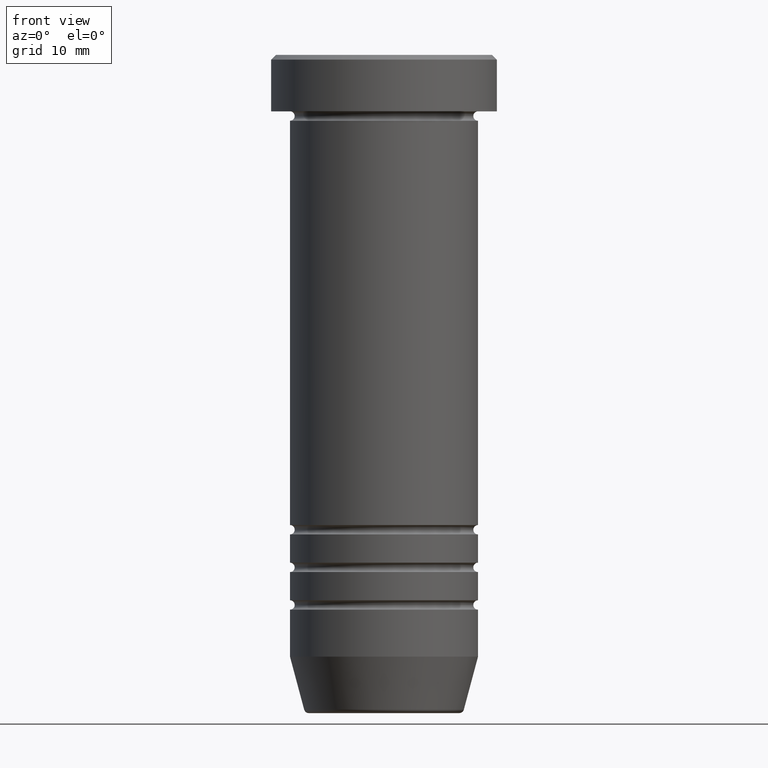
[diagram: clean part render]
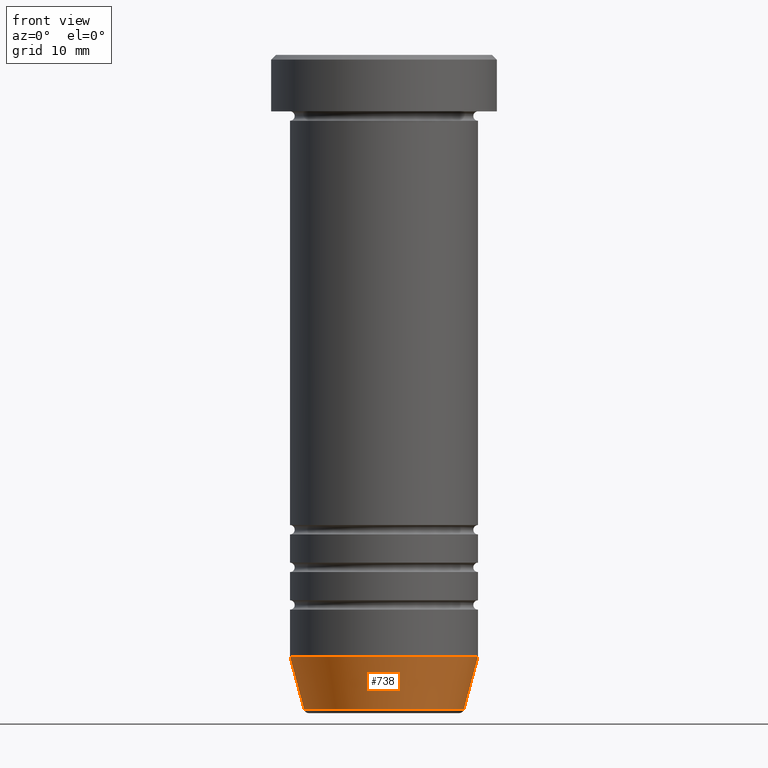
[diagram: same view with one face highlighted and labeled with its STEP entity id]
A machine part, front view. The second image highlights one B-rep face of the part: STEP entity #738.
In plain terms, the highlighted conical surface has half-angle 15 deg.
Its self-contained STEP definition (entity closure, byte-faithful):
#23 = DIRECTION ( 'NONE',  ( -0.000000000000000000, -0.000000000000000000, 1.000000000000000000 ) ) ;
#45 = EDGE_CURVE ( 'NONE', #1011, #467, #79, .T. ) ;
#79 = CIRCLE ( 'NONE', #495, 8.491604264568314520 ) ;
#89 = ORIENTED_EDGE ( 'NONE', *, *, #653, .F. ) ;
#112 = CARTESIAN_POINT ( 'NONE',  ( 0.000000000000000000, 0.000000000000000000, -70.00000000000000000 ) ) ;
#147 = ORIENTED_EDGE ( 'NONE', *, *, #186, .T. ) ;
#153 = VERTEX_POINT ( 'NONE', #1051 ) ;
#171 = EDGE_LOOP ( 'NONE', ( #89, #413, #147, #226 ) ) ;
#186 = EDGE_CURVE ( 'NONE', #467, #153, #563, .T. ) ;
#202 = CIRCLE ( 'NONE', #803, 10.00000000000000000 ) ;
#226 = ORIENTED_EDGE ( 'NONE', *, *, #850, .F. ) ;
#261 = VECTOR ( 'NONE', #640, 1000.000000000000114 ) ;
#344 = LINE ( 'NONE', #981, #261 ) ;
#371 = CARTESIAN_POINT ( 'NONE',  ( -10.00000000000000000, 1.224646799147353256E-15, -64.00000000000000000 ) ) ;
#413 = ORIENTED_EDGE ( 'NONE', *, *, #45, .T. ) ;
#427 = FACE_OUTER_BOUND ( 'NONE', #171, .T. ) ;
#467 = VERTEX_POINT ( 'NONE', #704 ) ;
#495 = AXIS2_PLACEMENT_3D ( 'NONE', #689, #1040, #1017 ) ;
#526 = DIRECTION ( 'NONE',  ( 1.000000000000000000, 0.000000000000000000, 0.000000000000000000 ) ) ;
#563 = LINE ( 'NONE', #802, #763 ) ;
#606 = CARTESIAN_POINT ( 'NONE',  ( 0.000000000000000000, 0.000000000000000000, -64.00000000000000000 ) ) ;
#632 = DIRECTION ( 'NONE',  ( 0.2588190451025215721, 0.000000000000000000, 0.9659258262890679791 ) ) ;
#640 = DIRECTION ( 'NONE',  ( -0.2588190451025215721, 3.169619151431775418E-17, 0.9659258262890679791 ) ) ;
#645 = CONICAL_SURFACE ( 'NONE', #800, 8.392304845413256942, 0.2617993877991502960 ) ;
#653 = EDGE_CURVE ( 'NONE', #1011, #967, #344, .T. ) ;
#689 = CARTESIAN_POINT ( 'NONE',  ( 0.000000000000000000, 0.000000000000000000, -69.62940952255125637 ) ) ;
#703 = CARTESIAN_POINT ( 'NONE',  ( -8.491604264568314520, 1.132284198685156584E-15, -69.62940952255125637 ) ) ;
#704 = CARTESIAN_POINT ( 'NONE',  ( 8.491604264568314520, 0.000000000000000000, -69.62940952255125637 ) ) ;
#738 = ADVANCED_FACE ( 'NONE', ( #427 ), #645, .T. ) ;
#763 = VECTOR ( 'NONE', #632, 1000.000000000000114 ) ;
#800 = AXIS2_PLACEMENT_3D ( 'NONE', #112, #23, #526 ) ;
#802 = CARTESIAN_POINT ( 'NONE',  ( 8.392304845413256942, 0.000000000000000000, -70.00000000000000000 ) ) ;
#803 = AXIS2_PLACEMENT_3D ( 'NONE', #606, #1013, #930 ) ;
#850 = EDGE_CURVE ( 'NONE', #967, #153, #202, .T. ) ;
#930 = DIRECTION ( 'NONE',  ( 1.000000000000000000, 0.000000000000000000, 0.000000000000000000 ) ) ;
#967 = VERTEX_POINT ( 'NONE', #371 ) ;
#981 = CARTESIAN_POINT ( 'NONE',  ( -8.392304845413256942, 1.027760926640416720E-15, -70.00000000000000000 ) ) ;
#1011 = VERTEX_POINT ( 'NONE', #703 ) ;
#1013 = DIRECTION ( 'NONE',  ( -0.000000000000000000, -0.000000000000000000, 1.000000000000000000 ) ) ;
#1017 = DIRECTION ( 'NONE',  ( -1.000000000000000000, 0.000000000000000000, 0.000000000000000000 ) ) ;
#1040 = DIRECTION ( 'NONE',  ( -0.000000000000000000, -0.000000000000000000, 1.000000000000000000 ) ) ;
#1051 = CARTESIAN_POINT ( 'NONE',  ( 10.00000000000000000, 0.000000000000000000, -64.00000000000000000 ) ) ;